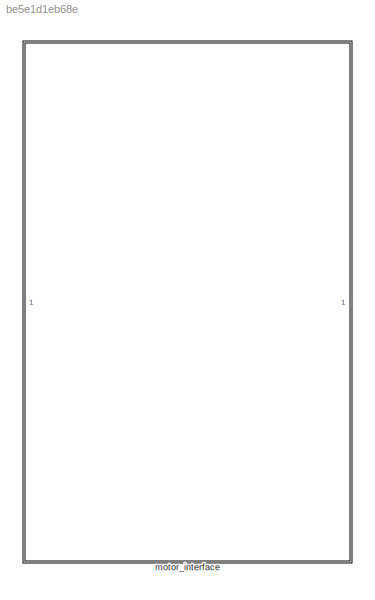
MODEL slx_be5e1d1eb68e
KIND library
CONFIG AbsTol = auto
CONFIG EnableMultiTasking = off
CONFIG FixedStep = auto
CONFIG MaxStep = auto
CONFIG MinStep = auto
CONFIG RelTol = 1e-3
CONFIG SampleTimeConstraint = Unconstrained
CONFIG SolverName = VariableStepAuto
CONFIG StartTime = 0.0
CONFIG StopTime = 10.0
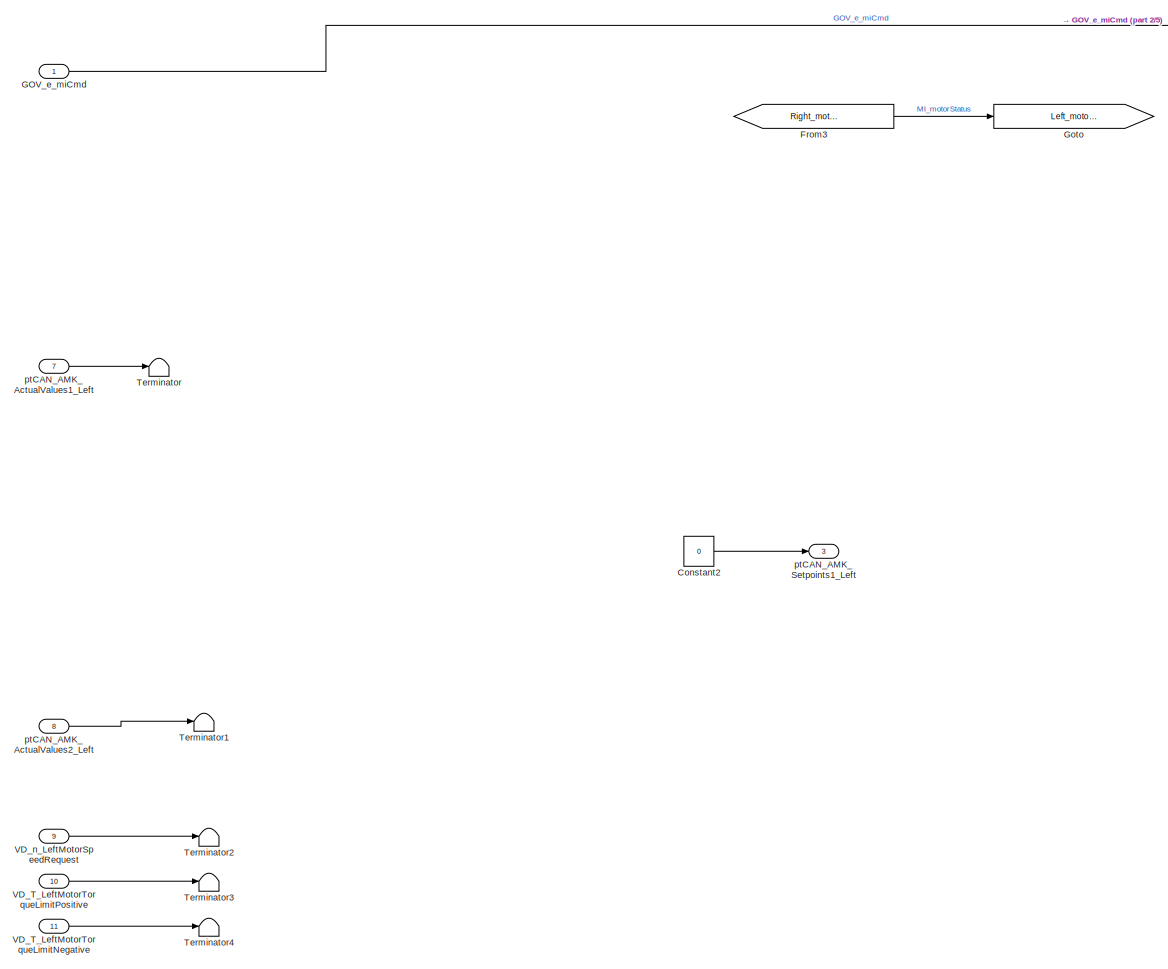
[diagram: motor_interface - part 1/5, top left region]
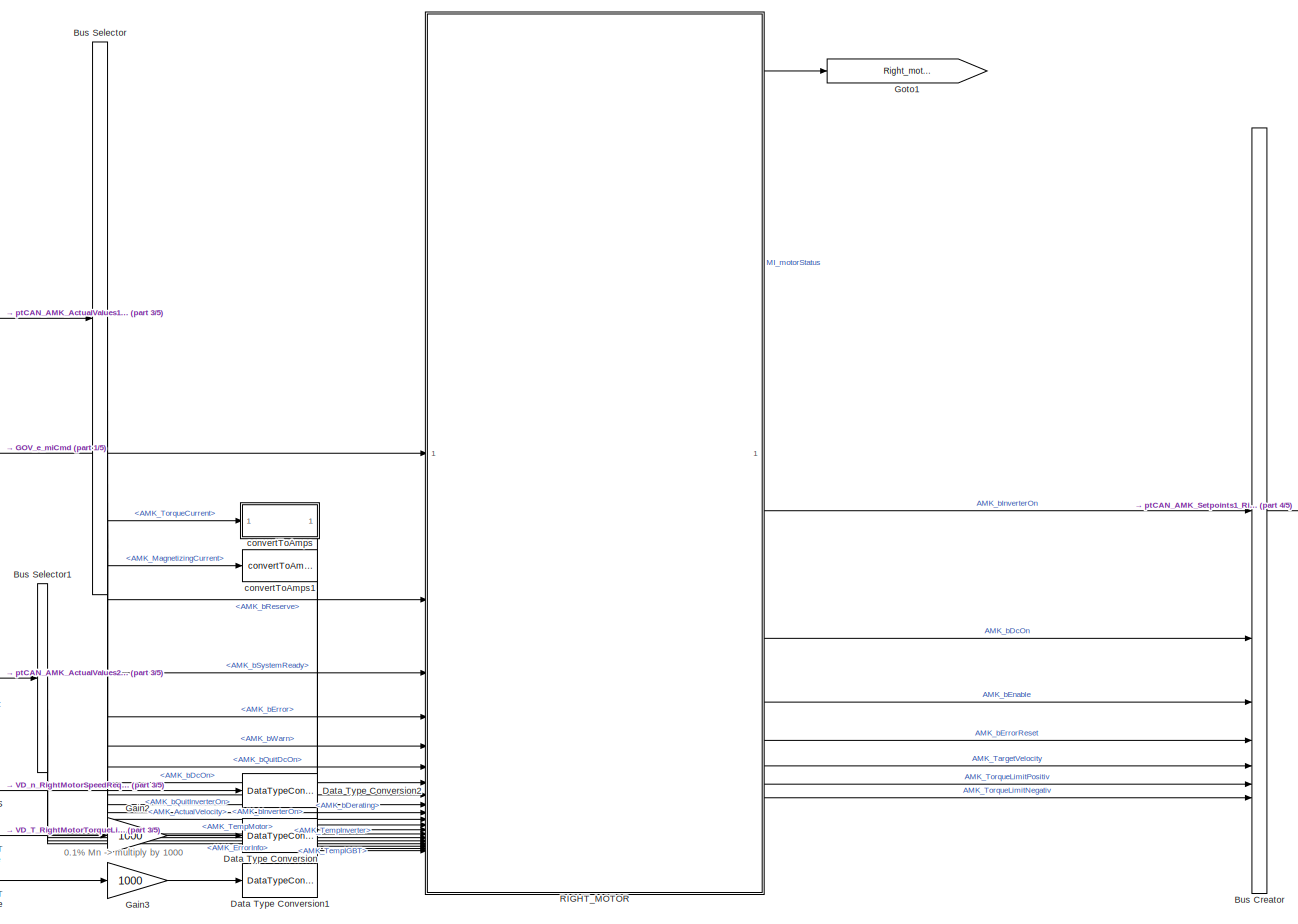
[diagram: motor_interface - part 2/5, middle right region]
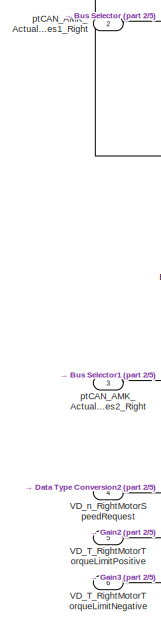
[diagram: motor_interface - part 3/5, central region]
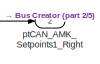
[diagram: motor_interface - part 4/5, middle right region]
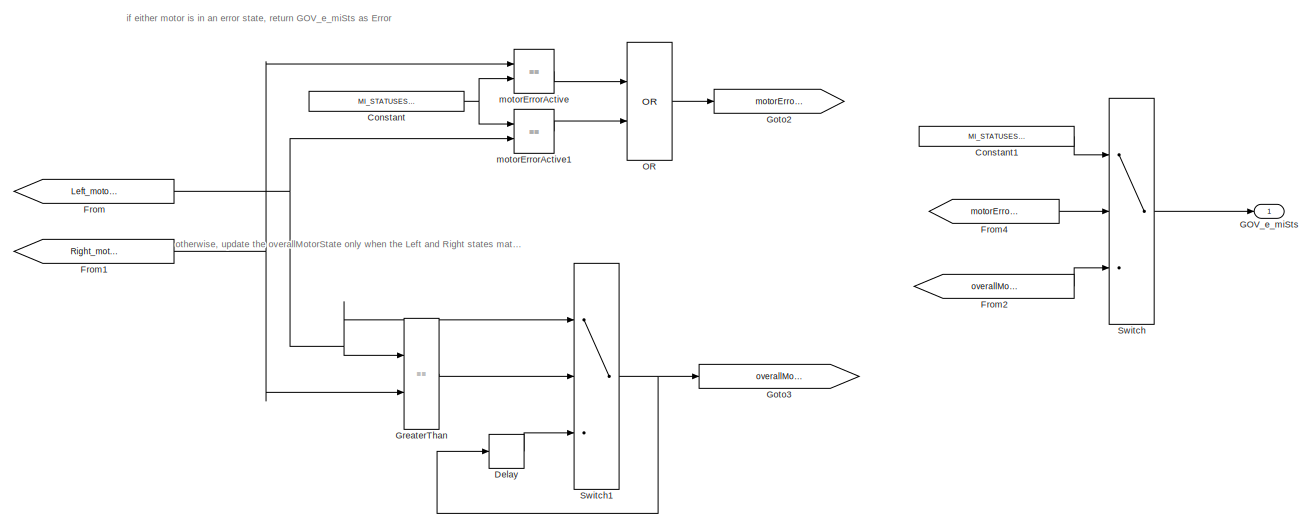
[diagram: motor_interface - part 5/5, bottom right region]
BLOCK [SubSystem] motor_interface
BLOCK [BusCreator] motor_interface/Bus Creator
  DisplayOption = bar
  InheritFromInputs = on
  Inputs = 7
BLOCK [BusSelector] motor_interface/Bus Selector
  OutputSignals = AMK_bReserve,AMK_bSystemReady,AMK_bError,AMK_bWarn,AMK_bQuitDcOn,AMK_bDcOn,AMK_bQuitInverterOn,AMK_bInverterOn,AMK_bDerating,AMK_ActualVelocity,AMK_TorqueCurrent,AMK_MagnetizingCurrent
BLOCK [BusSelector] motor_interface/Bus Selector1
  OutputSignals = AMK_TempMotor,AMK_TempInverter,AMK_ErrorInfo,AMK_TempIGBT
BLOCK [Constant] motor_interface/Constant
  OutDataTypeStr = Enum: MI_STATUSES
  Value = MI_STATUSES.MI_STS_ERROR
BLOCK [Constant] motor_interface/Constant1
  OutDataTypeStr = Enum: MI_STATUSES
  Value = MI_STATUSES.MI_STS_ERROR
BLOCK [Constant] motor_interface/Constant2
  OutDataTypeStr = single
  Value = 0
BLOCK [DataTypeConversion] motor_interface/Data Type Conversion
  OutDataTypeStr = int16
  RndMeth = Floor
  SaturateOnIntegerOverflow = off
BLOCK [DataTypeConversion] motor_interface/Data Type Conversion1
  OutDataTypeStr = int16
  RndMeth = Floor
  SaturateOnIntegerOverflow = off
BLOCK [DataTypeConversion] motor_interface/Data Type Conversion2
  OutDataTypeStr = int16
  RndMeth = Floor
  SaturateOnIntegerOverflow = off
BLOCK [Delay] motor_interface/Delay
  DelayLength = 1
  InitialCondition = MI_STATUSES.OFF
  InputPortMap = u0
BLOCK [From] motor_interface/From
  GotoTag = Left_motorStatus
BLOCK [From] motor_interface/From1
  GotoTag = Right_motorStatus
BLOCK [From] motor_interface/From2
  GotoTag = overallMotorState
BLOCK [From] motor_interface/From3
  GotoTag = Right_motorStatus
BLOCK [From] motor_interface/From4
  GotoTag = motorErrorActive
BLOCK [Inport] motor_interface/GOV_e_miCmd
BLOCK [Outport] motor_interface/GOV_e_miSts
BLOCK [Gain] motor_interface/Gain2
  Gain = 1000
BLOCK [Gain] motor_interface/Gain3
  Gain = 1000
BLOCK [Goto] motor_interface/Goto
  GotoTag = Left_motorStatus
BLOCK [Goto] motor_interface/Goto1
  GotoTag = Right_motorStatus
BLOCK [Goto] motor_interface/Goto2
  GotoTag = motorErrorActive
BLOCK [Goto] motor_interface/Goto3
  GotoTag = overallMotorState
BLOCK [RelationalOperator] motor_interface/GreaterThan
  InputSameDT = off
  Operator = ==
  OutDataTypeStr = boolean
  RndMeth = Simplest
BLOCK [Logic] motor_interface/OR
  AllPortsSameDT = off
  IconShape = distinctive
  Operator = OR
  OutDataTypeStr = boolean
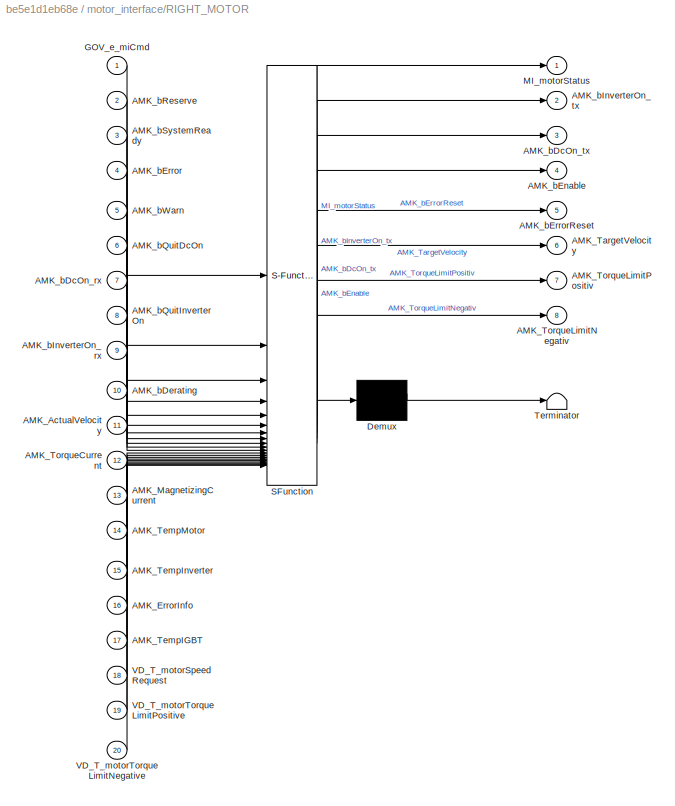
BLOCK [SubSystem] motor_interface/RIGHT_MOTOR
  ErrorFcn = Stateflow.Translate.translate
  PermitHierarchicalResolution = ExplicitOnly
  SFBlockType = Chart
  TreatAsAtomicUnit = on
BLOCK [Demux] motor_interface/RIGHT_MOTOR/ Demux 
  Outputs = 1
BLOCK [S-Function] motor_interface/RIGHT_MOTOR/ SFunction 
  EnableBusSupport = off
  FunctionName = sf_sfun
  PortCounts = [20 9]
  SFcnIsStateOwnerBlock = off
  SFunctionDeploymentMode = off
  Tag = Stateflow S-Function 3
BLOCK [Terminator] motor_interface/RIGHT_MOTOR/ Terminator 
BLOCK [Inport] motor_interface/RIGHT_MOTOR/AMK_ActualVelocity
  Port = 11
BLOCK [Inport] motor_interface/RIGHT_MOTOR/AMK_ErrorInfo
  Port = 16
BLOCK [Inport] motor_interface/RIGHT_MOTOR/AMK_MagnetizingCurrent
  Port = 13
BLOCK [Outport] motor_interface/RIGHT_MOTOR/AMK_TargetVelocity
  Port = 6
BLOCK [Inport] motor_interface/RIGHT_MOTOR/AMK_TempIGBT
  Port = 17
BLOCK [Inport] motor_interface/RIGHT_MOTOR/AMK_TempInverter
  Port = 15
BLOCK [Inport] motor_interface/RIGHT_MOTOR/AMK_TempMotor
  Port = 14
BLOCK [Inport] motor_interface/RIGHT_MOTOR/AMK_TorqueCurrent
  Port = 12
BLOCK [Outport] motor_interface/RIGHT_MOTOR/AMK_TorqueLimitNegativ
  Port = 8
BLOCK [Outport] motor_interface/RIGHT_MOTOR/AMK_TorqueLimitPositiv
  Port = 7
BLOCK [Inport] motor_interface/RIGHT_MOTOR/AMK_bDcOn_rx
  Port = 7
BLOCK [Outport] motor_interface/RIGHT_MOTOR/AMK_bDcOn_tx
  Port = 3
BLOCK [Inport] motor_interface/RIGHT_MOTOR/AMK_bDerating
  Port = 10
BLOCK [Outport] motor_interface/RIGHT_MOTOR/AMK_bEnable
  Port = 4
BLOCK [Inport] motor_interface/RIGHT_MOTOR/AMK_bError
  Port = 4
BLOCK [Outport] motor_interface/RIGHT_MOTOR/AMK_bErrorReset
  Port = 5
BLOCK [Inport] motor_interface/RIGHT_MOTOR/AMK_bInverterOn_rx
  Port = 9
BLOCK [Outport] motor_interface/RIGHT_MOTOR/AMK_bInverterOn_tx
  Port = 2
BLOCK [Inport] motor_interface/RIGHT_MOTOR/AMK_bQuitDcOn
  Port = 6
BLOCK [Inport] motor_interface/RIGHT_MOTOR/AMK_bQuitInverterOn
  Port = 8
BLOCK [Inport] motor_interface/RIGHT_MOTOR/AMK_bReserve
  Port = 2
BLOCK [Inport] motor_interface/RIGHT_MOTOR/AMK_bSystemReady
  Port = 3
BLOCK [Inport] motor_interface/RIGHT_MOTOR/AMK_bWarn
  Port = 5
BLOCK [Inport] motor_interface/RIGHT_MOTOR/GOV_e_miCmd
BLOCK [Outport] motor_interface/RIGHT_MOTOR/MI_motorStatus
BLOCK [Inport] motor_interface/RIGHT_MOTOR/VD_T_motorSpeedRequest
  Port = 18
BLOCK [Inport] motor_interface/RIGHT_MOTOR/VD_T_motorTorqueLimitNegative
  Port = 20
BLOCK [Inport] motor_interface/RIGHT_MOTOR/VD_T_motorTorqueLimitPositive
  Port = 19
BLOCK [Switch] motor_interface/Switch
  Criteria = u2 > Threshold
  InputSameDT = off
  SaturateOnIntegerOverflow = off
BLOCK [Switch] motor_interface/Switch1
  Criteria = u2 > Threshold
  InputSameDT = off
  SaturateOnIntegerOverflow = off
BLOCK [Terminator] motor_interface/Terminator
BLOCK [Terminator] motor_interface/Terminator1
BLOCK [Terminator] motor_interface/Terminator2
BLOCK [Terminator] motor_interface/Terminator3
BLOCK [Terminator] motor_interface/Terminator4
BLOCK [Inport] motor_interface/VD_T_LeftMotorTorqueLimitNegative
  Port = 11
BLOCK [Inport] motor_interface/VD_T_LeftMotorTorqueLimitPositive
  Port = 10
BLOCK [Inport] motor_interface/VD_T_RightMotorTorqueLimitNegative
  Port = 6
BLOCK [Inport] motor_interface/VD_T_RightMotorTorqueLimitPositive
  Port = 5
BLOCK [Inport] motor_interface/VD_n_LeftMotorSpeedRequest
  Port = 9
BLOCK [Inport] motor_interface/VD_n_RightMotorSpeedRequest
  Port = 4
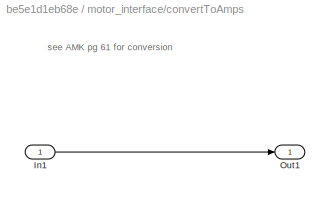
BLOCK [SubSystem] motor_interface/convertToAmps
BLOCK [Inport] motor_interface/convertToAmps/In1
BLOCK [Outport] motor_interface/convertToAmps/Out1
BLOCK [Reference] motor_interface/convertToAmps1  REF=$bdroot/motor_interface/convertToAmps
  SourceBlock = $bdroot/motor_interface/convertToAmps
  SourceType = SubSystem
BLOCK [RelationalOperator] motor_interface/motorErrorActive
  InputSameDT = off
  Operator = ==
  OutDataTypeStr = boolean
  RndMeth = Simplest
BLOCK [RelationalOperator] motor_interface/motorErrorActive1
  InputSameDT = off
  Operator = ==
  OutDataTypeStr = boolean
  RndMeth = Simplest
BLOCK [Inport] motor_interface/ptCAN_AMK_ActualValues1_Left
  Port = 7
BLOCK [Inport] motor_interface/ptCAN_AMK_ActualValues1_Right
  Port = 2
BLOCK [Inport] motor_interface/ptCAN_AMK_ActualValues2_Left
  Port = 8
BLOCK [Inport] motor_interface/ptCAN_AMK_ActualValues2_Right
  Port = 3
BLOCK [Outport] motor_interface/ptCAN_AMK_Setpoints1_Left
  Port = 3
BLOCK [Outport] motor_interface/ptCAN_AMK_Setpoints1_Right
  Port = 2
ANNOTATION motor_interface: 0.1% Mn -> multiply by 1000
ANNOTATION motor_interface: if either motor is in an error state, return GOV_e_miSts as Error
ANNOTATION motor_interface: otherwise, update the overallMotorState only when the Left and Right states match, and return as GOV_e_miSts
ANNOTATION motor_interface/convertToAmps: see AMK pg 61 for conversion
LINE motor_interface/Bus Creator:1 -> motor_interface/ptCAN_AMK_Setpoints1_Right:1
LINE motor_interface/Bus Selector1:1 -> motor_interface/RIGHT_MOTOR:14
LINE motor_interface/Bus Selector1:2 -> motor_interface/RIGHT_MOTOR:15
LINE motor_interface/Bus Selector1:3 -> motor_interface/RIGHT_MOTOR:16
LINE motor_interface/Bus Selector1:4 -> motor_interface/RIGHT_MOTOR:17
LINE motor_interface/Bus Selector:1 -> motor_interface/RIGHT_MOTOR:2
LINE motor_interface/Bus Selector:10 -> motor_interface/RIGHT_MOTOR:11
LINE motor_interface/Bus Selector:11 -> motor_interface/convertToAmps:1
LINE motor_interface/Bus Selector:12 -> motor_interface/convertToAmps1:1
LINE motor_interface/Bus Selector:2 -> motor_interface/RIGHT_MOTOR:3
LINE motor_interface/Bus Selector:3 -> motor_interface/RIGHT_MOTOR:4
LINE motor_interface/Bus Selector:4 -> motor_interface/RIGHT_MOTOR:5
LINE motor_interface/Bus Selector:5 -> motor_interface/RIGHT_MOTOR:6
LINE motor_interface/Bus Selector:6 -> motor_interface/RIGHT_MOTOR:7
LINE motor_interface/Bus Selector:7 -> motor_interface/RIGHT_MOTOR:8
LINE motor_interface/Bus Selector:8 -> motor_interface/RIGHT_MOTOR:9
LINE motor_interface/Bus Selector:9 -> motor_interface/RIGHT_MOTOR:10
LINE motor_interface/Constant1:1 -> motor_interface/Switch:1
LINE motor_interface/Constant2:1 -> motor_interface/ptCAN_AMK_Setpoints1_Left:1
NET motor_interface/Constant:1 -> motor_interface/motorErrorActive1:1, motor_interface/motorErrorActive:2
LINE motor_interface/Data Type Conversion1:1 -> motor_interface/RIGHT_MOTOR:20
LINE motor_interface/Data Type Conversion2:1 -> motor_interface/RIGHT_MOTOR:18
LINE motor_interface/Data Type Conversion:1 -> motor_interface/RIGHT_MOTOR:19
LINE motor_interface/Delay:1 -> motor_interface/Switch1:3
NET motor_interface/From1:1 -> motor_interface/GreaterThan:2, motor_interface/motorErrorActive:1
LINE motor_interface/From2:1 -> motor_interface/Switch:3
LINE motor_interface/From3:1 -> motor_interface/Goto:1
LINE motor_interface/From4:1 -> motor_interface/Switch:2
NET motor_interface/From:1 -> motor_interface/GreaterThan:1, motor_interface/Switch1:1, motor_interface/motorErrorActive1:2
LINE motor_interface/GOV_e_miCmd:1 -> motor_interface/RIGHT_MOTOR:1
LINE motor_interface/Gain2:1 -> motor_interface/Data Type Conversion:1
LINE motor_interface/Gain3:1 -> motor_interface/Data Type Conversion1:1
LINE motor_interface/GreaterThan:1 -> motor_interface/Switch1:2
LINE motor_interface/OR:1 -> motor_interface/Goto2:1
LINE motor_interface/RIGHT_MOTOR:1 -> motor_interface/Goto1:1
LINE motor_interface/RIGHT_MOTOR:2 -> motor_interface/Bus Creator:1
LINE motor_interface/RIGHT_MOTOR:3 -> motor_interface/Bus Creator:2
LINE motor_interface/RIGHT_MOTOR:4 -> motor_interface/Bus Creator:3
LINE motor_interface/RIGHT_MOTOR:5 -> motor_interface/Bus Creator:4
LINE motor_interface/RIGHT_MOTOR:6 -> motor_interface/Bus Creator:5
LINE motor_interface/RIGHT_MOTOR:7 -> motor_interface/Bus Creator:6
LINE motor_interface/RIGHT_MOTOR:8 -> motor_interface/Bus Creator:7
NET motor_interface/Switch1:1 -> motor_interface/Delay:1, motor_interface/Goto3:1
LINE motor_interface/Switch:1 -> motor_interface/GOV_e_miSts:1
LINE motor_interface/VD_T_LeftMotorTorqueLimitNegative:1 -> motor_interface/Terminator4:1
LINE motor_interface/VD_T_LeftMotorTorqueLimitPositive:1 -> motor_interface/Terminator3:1
LINE motor_interface/VD_T_RightMotorTorqueLimitNegative:1 -> motor_interface/Gain3:1
LINE motor_interface/VD_T_RightMotorTorqueLimitPositive:1 -> motor_interface/Gain2:1
LINE motor_interface/VD_n_LeftMotorSpeedRequest:1 -> motor_interface/Terminator2:1
LINE motor_interface/VD_n_RightMotorSpeedRequest:1 -> motor_interface/Data Type Conversion2:1
LINE motor_interface/convertToAmps/In1:1 -> motor_interface/convertToAmps/Out1:1
LINE motor_interface/convertToAmps1:1 -> motor_interface/RIGHT_MOTOR:13
LINE motor_interface/convertToAmps:1 -> motor_interface/RIGHT_MOTOR:12
LINE motor_interface/motorErrorActive1:1 -> motor_interface/OR:2
LINE motor_interface/motorErrorActive:1 -> motor_interface/OR:1
LINE motor_interface/ptCAN_AMK_ActualValues1_Left:1 -> motor_interface/Terminator:1
LINE motor_interface/ptCAN_AMK_ActualValues1_Right:1 -> motor_interface/Bus Selector:1
LINE motor_interface/ptCAN_AMK_ActualValues2_Left:1 -> motor_interface/Terminator1:1
LINE motor_interface/ptCAN_AMK_ActualValues2_Right:1 -> motor_interface/Bus Selector1:1
note: NET lines group one-source signal fan-out (src -> all destinations, sorted); 1:1 wires keep LINE
CHART motor_interface/RIGHT_MOTOR states=18 transitions=41
  STATE_LABEL '[AMK_bError==1]'
  STATE_LABEL 'motorOff_waitingForGov\nen:\nMI_motorStatus = MI_STATUSES.OFF;\nAMK_bInverterOn_tx = 0;\nAMK_bDcOn_tx = 0;\nAMK_bEnable = 0;\nAMK_bErrorReset = 0;\nAMK_TargetVelocity = 0;\nAMK_TorqueLimitPositiv = 0;\nAMK_TorqueLimitNegativ = 0;'
  STATE_LABEL 'AMK_startup'
  STATE_LABEL 'waiting_sysReady\nen:\nMI_motorStatus = MI_STATUSES.STARTUP;'
  STATE_LABEL 'toggleDCon\nen:\nAMK_bDcOn_tx = 1;'
  STATE_LABEL 'enforceSetpointsZero\nen:\nAMK_TargetVelocity = 0;\nAMK_TorqueLimitPositiv = 0;\nAMK_TorqueLimitNegativ = 0;'
  STATE_LABEL 'commandOn\nen:\nAMK_bEnable = 1;\nAMK_bInverterOn_tx = 1;\n'
  STATE_LABEL '[GOV_e_miCmd == MI_CMD.CMD_STARTUP]'
  STATE_LABEL '[AMK_bError==1]'
  STATE_LABEL '[AMK_bSystemReady==1]'
  STATE_LABEL '[AMK_bError==1]'
  STATE_LABEL '[(AMK_bDcOn_rx==1) ...\n&& (AMK_bQuitDcOn==1)]'
  STATE_LABEL '[AMK_bError==1]'
  STATE_LABEL '[AMK_bError==1]'
  STATE_LABEL 'after(1,sec)'
  STATE_LABEL '[(AMK_bInverterOn_rx ==1) && ...\n (AMK_bQuitInverterOn==1)]'
  STATE_LABEL 'waiting_sysReady\nen:\nMI_motorStatus = MI_STATUSES.STARTUP;'
  STATE_LABEL 'toggleDCon\nen:\nAMK_bDcOn_tx = 1;'
  STATE_LABEL 'enforceSetpointsZero\nen:\nAMK_TargetVelocity = 0;\nAMK_TorqueLimitPositiv = 0;\nAMK_TorqueLimitNegativ = 0;'
  STATE_LABEL 'commandOn\nen:\nAMK_bEnable = 1;\nAMK_bInverterOn_tx = 1;\n'
  STATE_LABEL 'AMK_errorReset'
  STATE_LABEL 'toggleReset\nen:\nAMK_bErrorReset = 0;'
  STATE_LABEL 'sendReset\nen:\nAMK_bErrorReset = 1;'
  STATE_LABEL 'toggleEnable\nen:\nAMK_bEnable = 0;'
  STATE_LABEL 'enforceSetpointsZero\nen:\nAMK_TargetVelocity = 0;\nAMK_TorqueLimitPositiv = 0;\nAMK_TorqueLimitNegativ = 0;\nAMK_bInverterOn_tx = 0;'
  STATE_LABEL '[AMK_bSystemReady==1]'
  STATE_LABEL 'after(500,msec)'
  STATE_LABEL 'after(500,msec)'
  STATE_LABEL '[AMK_bInverterOn_rx==0]'
  STATE_LABEL '[GOV_e_miCmd == MI_CMD.ERR_RESET]'
  STATE_LABEL 'toggleReset\nen:\nAMK_bErrorReset = 0;'
  STATE_LABEL 'sendReset\nen:\nAMK_bErrorReset = 1;'
  STATE_LABEL 'toggleEnable\nen:\nAMK_bEnable = 0;'
  STATE_LABEL 'enforceSetpointsZero\nen:\nAMK_TargetVelocity = 0;\nAMK_TorqueLimitPositiv = 0;\nAMK_TorqueLimitNegativ = 0;\nAMK_bInverterOn_tx = 0;'
  STATE_LABEL 'AMK_shutdown\n'
  STATE_LABEL 'toggleDCon\nen:\nAMK_bDcOn_tx = 0;'
  STATE_LABEL 'commandOff\nen:\nAMK_bEnable = 0;\n'
  STATE_LABEL 'enforceSetpointsZero\nen:\nMI_motorStatus = MI_STATUSES.SHUTDOWN;\nAMK_TargetVelocity = 0;\nAMK_TorqueLimitPositiv = 0;\nAMK_TorqueLimitNegativ = 0;\nAMK_bInverterOn_tx = 0;\n'
  STATE_LABEL '[(AMK_bDcOn_rx==0) && (AMK_bQuitDcOn==0)]'
  STATE_LABEL '[AMK_bError==1]'
CHART  states=0 transitions=0
